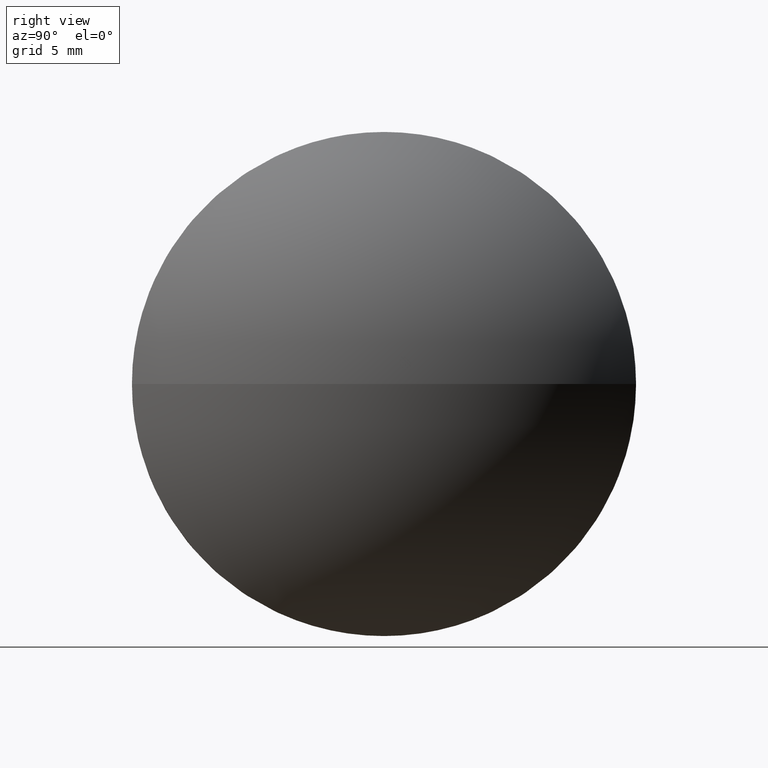
[diagram: clean part render]
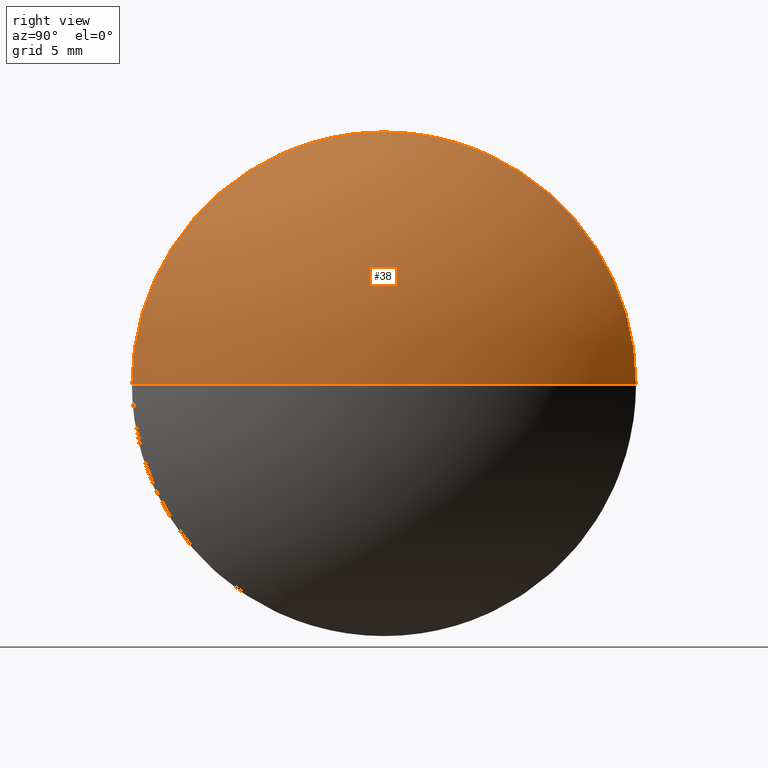
[diagram: same view with one face highlighted and labeled with its STEP entity id]
A machine part, right view. The second image highlights one B-rep face of the part: STEP entity #38.
In plain terms, the highlighted spherical surface has radius 16.0596 mm.
Its self-contained STEP definition (entity closure, byte-faithful):
#2 = CIRCLE ( 'NONE', #15, 16.05962279293740700 ) ;
#5 = CARTESIAN_POINT ( 'NONE',  ( 528.7403345451293700, 109.1985540701067800, 0.0000000000000000000 ) ) ;
#14 = SPHERICAL_SURFACE ( 'NONE', #90, 16.05962279293740700 ) ;
#15 = AXIS2_PLACEMENT_3D ( 'NONE', #31, #179, #163 ) ;
#17 = ORIENTED_EDGE ( 'NONE', *, *, #135, .F. ) ;
#22 = ORIENTED_EDGE ( 'NONE', *, *, #186, .T. ) ;
#26 = VERTEX_POINT ( 'NONE', #138 ) ;
#28 = CARTESIAN_POINT ( 'NONE',  ( 518.9107117521919000, 109.1985540701067500, 0.0000000000000000000 ) ) ;
#30 = AXIS2_PLACEMENT_3D ( 'NONE', #110, #82, #33 ) ;
#31 = CARTESIAN_POINT ( 'NONE',  ( 518.9107117521919000, 109.1985540701067500, 0.0000000000000000000 ) ) ;
#33 = DIRECTION ( 'NONE',  ( 0.0000000000000000000, 0.0000000000000000000, 1.000000000000000000 ) ) ;
#34 = AXIS2_PLACEMENT_3D ( 'NONE', #5, #55, #151 ) ;
#35 = CARTESIAN_POINT ( 'NONE',  ( 528.7403345451293700, 96.49855407010676300, -1.555301434917136700E-015 ) ) ;
#38 = ADVANCED_FACE ( 'NONE', ( #77 ), #14, .T. ) ;
#48 = CARTESIAN_POINT ( 'NONE',  ( 528.7403345451293700, 121.8985540701067700, 0.0000000000000000000 ) ) ;
#55 = DIRECTION ( 'NONE',  ( -1.000000000000000000, -0.0000000000000000000, -0.0000000000000000000 ) ) ;
#60 = ORIENTED_EDGE ( 'NONE', *, *, #62, .F. ) ;
#62 = EDGE_CURVE ( 'NONE', #26, #159, #2, .T. ) ;
#69 = CARTESIAN_POINT ( 'NONE',  ( 518.9107117521919000, 109.1985540701067500, 0.0000000000000000000 ) ) ;
#71 = ORIENTED_EDGE ( 'NONE', *, *, #103, .F. ) ;
#73 = CIRCLE ( 'NONE', #172, 16.05962279293737900 ) ;
#74 = CIRCLE ( 'NONE', #30, 12.70000000000000300 ) ;
#77 = FACE_OUTER_BOUND ( 'NONE', #148, .T. ) ;
#82 = DIRECTION ( 'NONE',  ( -1.000000000000000000, -0.0000000000000000000, -0.0000000000000000000 ) ) ;
#90 = AXIS2_PLACEMENT_3D ( 'NONE', #28, #106, #162 ) ;
#97 = VERTEX_POINT ( 'NONE', #48 ) ;
#103 = EDGE_CURVE ( 'NONE', #159, #137, #144, .T. ) ;
#106 = DIRECTION ( 'NONE',  ( -0.0000000000000000000, 0.0000000000000000000, -1.000000000000000000 ) ) ;
#109 = DIRECTION ( 'NONE',  ( 1.000000000000000000, 0.0000000000000000000, 0.0000000000000000000 ) ) ;
#110 = CARTESIAN_POINT ( 'NONE',  ( 528.7403345451293700, 109.1985540701067800, 0.0000000000000000000 ) ) ;
#135 = EDGE_CURVE ( 'NONE', #137, #97, #74, .T. ) ;
#137 = VERTEX_POINT ( 'NONE', #169 ) ;
#138 = CARTESIAN_POINT ( 'NONE',  ( 534.9703345451292800, 109.1985540701067500, 0.0000000000000000000 ) ) ;
#144 = CIRCLE ( 'NONE', #34, 12.70000000000000300 ) ;
#148 = EDGE_LOOP ( 'NONE', ( #60, #22, #17, #71 ) ) ;
#151 = DIRECTION ( 'NONE',  ( 0.0000000000000000000, 0.0000000000000000000, 1.000000000000000000 ) ) ;
#159 = VERTEX_POINT ( 'NONE', #35 ) ;
#162 = DIRECTION ( 'NONE',  ( 0.0000000000000000000, 1.000000000000000000, 0.0000000000000000000 ) ) ;
#163 = DIRECTION ( 'NONE',  ( 0.0000000000000000000, 1.000000000000000000, 1.224646799147353200E-016 ) ) ;
#167 = DIRECTION ( 'NONE',  ( -0.0000000000000000000, 0.0000000000000000000, 1.000000000000000000 ) ) ;
#169 = CARTESIAN_POINT ( 'NONE',  ( 528.7403345451293700, 109.1985540701067800, 12.70000000000000300 ) ) ;
#172 = AXIS2_PLACEMENT_3D ( 'NONE', #69, #167, #109 ) ;
#179 = DIRECTION ( 'NONE',  ( 0.0000000000000000000, 1.224646799147353200E-016, -1.000000000000000000 ) ) ;
#186 = EDGE_CURVE ( 'NONE', #26, #97, #73, .T. ) ;